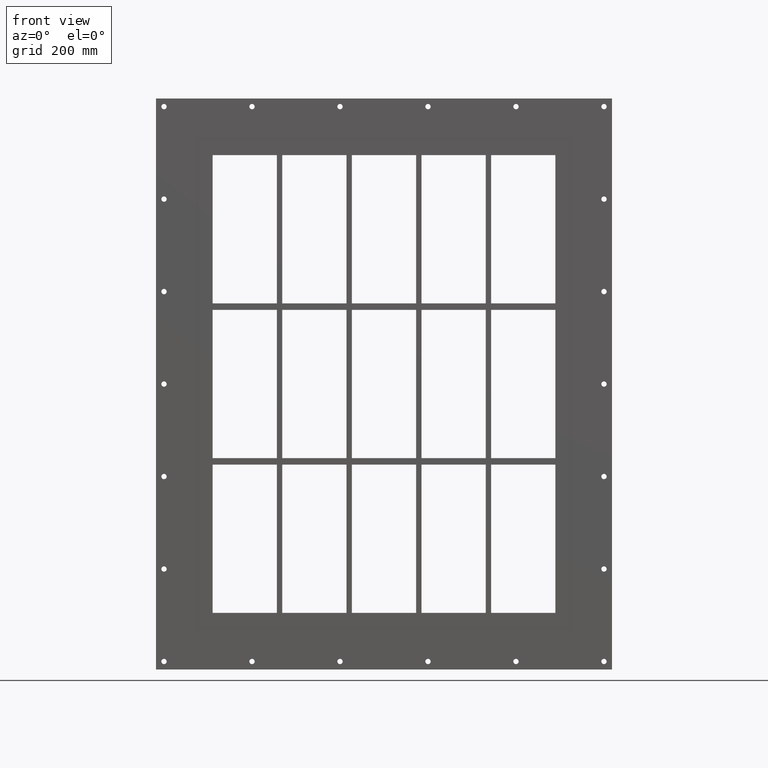
[diagram: clean part render]
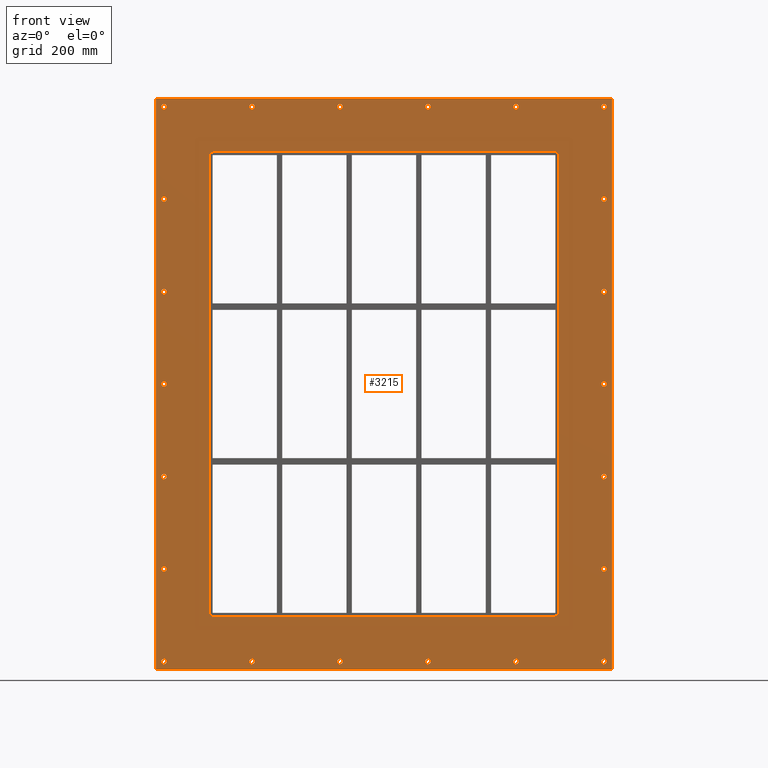
[diagram: same view with one face highlighted and labeled with its STEP entity id]
A machine part, front view. The second image highlights one B-rep face of the part: STEP entity #3215.
In plain terms, the highlighted planar face has unit normal (0, 1, 0).
Its self-contained STEP definition (entity closure, byte-faithful):
#84=CARTESIAN_POINT('',(-407.25,0.0,-519.99999999999977));
#85=VERTEX_POINT('',#84);
#86=CARTESIAN_POINT('',(-412.25,0.0,-519.99999999999977));
#87=DIRECTION('',(0.0,1.0,0.0));
#88=DIRECTION('',(1.0,0.0,0.0));
#89=AXIS2_PLACEMENT_3D('',#86,#87,#88);
#90=CIRCLE('',#89,5.0);
#91=EDGE_CURVE('',#85,#85,#90,.T.);
#112=CARTESIAN_POINT('',(417.25000000000017,0.0,-346.6999999999997));
#113=VERTEX_POINT('',#112);
#114=CARTESIAN_POINT('',(412.25000000000017,0.0,-346.6999999999997));
#115=DIRECTION('',(0.0,1.0,0.0));
#116=DIRECTION('',(1.0,0.0,0.0));
#117=AXIS2_PLACEMENT_3D('',#114,#115,#116);
#118=CIRCLE('',#117,5.0);
#119=EDGE_CURVE('',#113,#113,#118,.T.);
#140=CARTESIAN_POINT('',(-407.25,0.0,-346.6999999999997));
#141=VERTEX_POINT('',#140);
#142=CARTESIAN_POINT('',(-412.25,0.0,-346.6999999999997));
#143=DIRECTION('',(0.0,1.0,0.0));
#144=DIRECTION('',(1.0,0.0,0.0));
#145=AXIS2_PLACEMENT_3D('',#142,#143,#144);
#146=CIRCLE('',#145,5.0);
#147=EDGE_CURVE('',#141,#141,#146,.T.);
#168=CARTESIAN_POINT('',(417.25000000000017,0.0,-173.39999999999975));
#169=VERTEX_POINT('',#168);
#170=CARTESIAN_POINT('',(412.25000000000017,0.0,-173.39999999999975));
#171=DIRECTION('',(0.0,1.0,0.0));
#172=DIRECTION('',(1.0,0.0,0.0));
#173=AXIS2_PLACEMENT_3D('',#170,#171,#172);
#174=CIRCLE('',#173,5.0);
#175=EDGE_CURVE('',#169,#169,#174,.T.);
#196=CARTESIAN_POINT('',(-407.25,0.0,-173.39999999999975));
#197=VERTEX_POINT('',#196);
#198=CARTESIAN_POINT('',(-412.25,0.0,-173.39999999999975));
#199=DIRECTION('',(0.0,1.0,0.0));
#200=DIRECTION('',(1.0,0.0,0.0));
#201=AXIS2_PLACEMENT_3D('',#198,#199,#200);
#202=CIRCLE('',#201,5.0);
#203=EDGE_CURVE('',#197,#197,#202,.T.);
#224=CARTESIAN_POINT('',(417.25000000000017,0.0,-0.099999999999767));
#225=VERTEX_POINT('',#224);
#226=CARTESIAN_POINT('',(412.25000000000017,0.0,-0.099999999999767));
#227=DIRECTION('',(0.0,1.0,0.0));
#228=DIRECTION('',(1.0,0.0,0.0));
#229=AXIS2_PLACEMENT_3D('',#226,#227,#228);
#230=CIRCLE('',#229,5.0);
#231=EDGE_CURVE('',#225,#225,#230,.T.);
#252=CARTESIAN_POINT('',(-407.25,0.0,-0.099999999999767));
#253=VERTEX_POINT('',#252);
#254=CARTESIAN_POINT('',(-412.25,0.0,-0.099999999999767));
#255=DIRECTION('',(0.0,1.0,0.0));
#256=DIRECTION('',(1.0,0.0,0.0));
#257=AXIS2_PLACEMENT_3D('',#254,#255,#256);
#258=CIRCLE('',#257,5.0);
#259=EDGE_CURVE('',#253,#253,#258,.T.);
#280=CARTESIAN_POINT('',(417.25000000000017,0.0,173.20000000000022));
#281=VERTEX_POINT('',#280);
#282=CARTESIAN_POINT('',(412.25000000000017,0.0,173.20000000000022));
#283=DIRECTION('',(0.0,1.0,0.0));
#284=DIRECTION('',(1.0,0.0,0.0));
#285=AXIS2_PLACEMENT_3D('',#282,#283,#284);
#286=CIRCLE('',#285,5.0);
#287=EDGE_CURVE('',#281,#281,#286,.T.);
#308=CARTESIAN_POINT('',(-407.25,0.0,173.20000000000022));
#309=VERTEX_POINT('',#308);
#310=CARTESIAN_POINT('',(-412.25,0.0,173.20000000000022));
#311=DIRECTION('',(0.0,1.0,0.0));
#312=DIRECTION('',(1.0,0.0,0.0));
#313=AXIS2_PLACEMENT_3D('',#310,#311,#312);
#314=CIRCLE('',#313,5.0);
#315=EDGE_CURVE('',#309,#309,#314,.T.);
#336=CARTESIAN_POINT('',(417.25000000000017,0.0,346.50000000000023));
#337=VERTEX_POINT('',#336);
#338=CARTESIAN_POINT('',(412.25000000000017,0.0,346.50000000000023));
#339=DIRECTION('',(0.0,1.0,0.0));
#340=DIRECTION('',(1.0,0.0,0.0));
#341=AXIS2_PLACEMENT_3D('',#338,#339,#340);
#342=CIRCLE('',#341,5.0);
#343=EDGE_CURVE('',#337,#337,#342,.T.);
#364=CARTESIAN_POINT('',(-407.25,0.0,346.50000000000023));
#365=VERTEX_POINT('',#364);
#366=CARTESIAN_POINT('',(-412.25,0.0,346.50000000000023));
#367=DIRECTION('',(0.0,1.0,0.0));
#368=DIRECTION('',(1.0,0.0,0.0));
#369=AXIS2_PLACEMENT_3D('',#366,#367,#368);
#370=CIRCLE('',#369,5.0);
#371=EDGE_CURVE('',#365,#365,#370,.T.);
#392=CARTESIAN_POINT('',(-242.34999999999991,0.0,519.80000000000018));
#393=VERTEX_POINT('',#392);
#394=CARTESIAN_POINT('',(-247.34999999999991,0.0,519.80000000000018));
#395=DIRECTION('',(0.0,1.0,0.0));
#396=DIRECTION('',(1.0,0.0,0.0));
#397=AXIS2_PLACEMENT_3D('',#394,#395,#396);
#398=CIRCLE('',#397,5.0);
#399=EDGE_CURVE('',#393,#393,#398,.T.);
#420=CARTESIAN_POINT('',(-242.34999999999991,0.0,-520.0));
#421=VERTEX_POINT('',#420);
#422=CARTESIAN_POINT('',(-247.34999999999991,0.0,-520.0));
#423=DIRECTION('',(0.0,1.0,0.0));
#424=DIRECTION('',(1.0,0.0,0.0));
#425=AXIS2_PLACEMENT_3D('',#422,#423,#424);
#426=CIRCLE('',#425,5.0);
#427=EDGE_CURVE('',#421,#421,#426,.T.);
#448=CARTESIAN_POINT('',(-77.449999999999903,0.0,519.80000000000018));
#449=VERTEX_POINT('',#448);
#450=CARTESIAN_POINT('',(-82.449999999999903,0.0,519.80000000000018));
#451=DIRECTION('',(0.0,1.0,0.0));
#452=DIRECTION('',(1.0,0.0,0.0));
#453=AXIS2_PLACEMENT_3D('',#450,#451,#452);
#454=CIRCLE('',#453,5.0);
#455=EDGE_CURVE('',#449,#449,#454,.T.);
#476=CARTESIAN_POINT('',(-77.449999999999903,0.0,-520.0));
#477=VERTEX_POINT('',#476);
#478=CARTESIAN_POINT('',(-82.449999999999903,0.0,-520.0));
#479=DIRECTION('',(0.0,1.0,0.0));
#480=DIRECTION('',(1.0,0.0,0.0));
#481=AXIS2_PLACEMENT_3D('',#478,#479,#480);
#482=CIRCLE('',#481,5.0);
#483=EDGE_CURVE('',#477,#477,#482,.T.);
#504=CARTESIAN_POINT('',(87.450000000000117,0.0,519.80000000000018));
#505=VERTEX_POINT('',#504);
#506=CARTESIAN_POINT('',(82.450000000000117,0.0,519.80000000000018));
#507=DIRECTION('',(0.0,1.0,0.0));
#508=DIRECTION('',(1.0,0.0,0.0));
#509=AXIS2_PLACEMENT_3D('',#506,#507,#508);
#510=CIRCLE('',#509,5.0);
#511=EDGE_CURVE('',#505,#505,#510,.T.);
#532=CARTESIAN_POINT('',(87.450000000000117,0.0,-520.0));
#533=VERTEX_POINT('',#532);
#534=CARTESIAN_POINT('',(82.450000000000117,0.0,-520.0));
#535=DIRECTION('',(0.0,1.0,0.0));
#536=DIRECTION('',(1.0,0.0,0.0));
#537=AXIS2_PLACEMENT_3D('',#534,#535,#536);
#538=CIRCLE('',#537,5.0);
#539=EDGE_CURVE('',#533,#533,#538,.T.);
#560=CARTESIAN_POINT('',(252.35000000000014,0.0,519.80000000000018));
#561=VERTEX_POINT('',#560);
#562=CARTESIAN_POINT('',(247.35000000000014,0.0,519.80000000000018));
#563=DIRECTION('',(0.0,1.0,0.0));
#564=DIRECTION('',(1.0,0.0,0.0));
#565=AXIS2_PLACEMENT_3D('',#562,#563,#564);
#566=CIRCLE('',#565,5.0);
#567=EDGE_CURVE('',#561,#561,#566,.T.);
#588=CARTESIAN_POINT('',(252.35000000000014,0.0,-520.0));
#589=VERTEX_POINT('',#588);
#590=CARTESIAN_POINT('',(247.35000000000014,0.0,-520.0));
#591=DIRECTION('',(0.0,1.0,0.0));
#592=DIRECTION('',(1.0,0.0,0.0));
#593=AXIS2_PLACEMENT_3D('',#590,#591,#592);
#594=CIRCLE('',#593,5.0);
#595=EDGE_CURVE('',#589,#589,#594,.T.);
#616=CARTESIAN_POINT('',(417.25000000000017,0.0,-520.0));
#617=VERTEX_POINT('',#616);
#618=CARTESIAN_POINT('',(412.25000000000017,0.0,-520.0));
#619=DIRECTION('',(0.0,1.0,0.0));
#620=DIRECTION('',(1.0,0.0,0.0));
#621=AXIS2_PLACEMENT_3D('',#618,#619,#620);
#622=CIRCLE('',#621,5.0);
#623=EDGE_CURVE('',#617,#617,#622,.T.);
#644=CARTESIAN_POINT('',(-407.25,0.0,519.80000000000018));
#645=VERTEX_POINT('',#644);
#646=CARTESIAN_POINT('',(-412.25,0.0,519.80000000000018));
#647=DIRECTION('',(0.0,1.0,0.0));
#648=DIRECTION('',(1.0,0.0,0.0));
#649=AXIS2_PLACEMENT_3D('',#646,#647,#648);
#650=CIRCLE('',#649,5.0);
#651=EDGE_CURVE('',#645,#645,#650,.T.);
#672=CARTESIAN_POINT('',(417.25000000000017,0.0,519.80000000000018));
#673=VERTEX_POINT('',#672);
#674=CARTESIAN_POINT('',(412.25000000000017,0.0,519.80000000000018));
#675=DIRECTION('',(0.0,1.0,0.0));
#676=DIRECTION('',(1.0,0.0,0.0));
#677=AXIS2_PLACEMENT_3D('',#674,#675,#676);
#678=CIRCLE('',#677,5.0);
#679=EDGE_CURVE('',#673,#673,#678,.T.);
#3040=CARTESIAN_POINT('',(0.0,0.0,3.544406E-014));
#3041=DIRECTION('',(0.0,1.0,0.0));
#3042=DIRECTION('',(0.0,0.0,1.0));
#3043=AXIS2_PLACEMENT_3D('',#3040,#3041,#3042);
#3044=PLANE('',#3043);
#3045=CARTESIAN_POINT('',(-427.25,0.0,535.00000000000011));
#3046=VERTEX_POINT('',#3045);
#3047=CARTESIAN_POINT('',(427.25,0.0,535.00000000000011));
#3048=VERTEX_POINT('',#3047);
#3049=CARTESIAN_POINT('',(-427.25,0.0,535.00000000000011));
#3050=DIRECTION('',(1.0,0.0,0.0));
#3051=VECTOR('',#3050,854.5);
#3052=LINE('',#3049,#3051);
#3053=EDGE_CURVE('',#3046,#3048,#3052,.T.);
#3054=ORIENTED_EDGE('',*,*,#3053,.F.);
#3055=CARTESIAN_POINT('',(-427.25,0.0,-535.0));
#3056=VERTEX_POINT('',#3055);
#3057=CARTESIAN_POINT('',(-427.25,0.0,-535.0));
#3058=DIRECTION('',(0.0,0.0,1.0));
#3059=VECTOR('',#3058,1070.0);
#3060=LINE('',#3057,#3059);
#3061=EDGE_CURVE('',#3056,#3046,#3060,.T.);
#3062=ORIENTED_EDGE('',*,*,#3061,.F.);
#3063=CARTESIAN_POINT('',(427.25,0.0,-535.0));
#3064=VERTEX_POINT('',#3063);
#3065=CARTESIAN_POINT('',(427.25,0.0,-535.0));
#3066=DIRECTION('',(-1.0,0.0,0.0));
#3067=VECTOR('',#3066,854.5);
#3068=LINE('',#3065,#3067);
#3069=EDGE_CURVE('',#3064,#3056,#3068,.T.);
#3070=ORIENTED_EDGE('',*,*,#3069,.F.);
#3071=CARTESIAN_POINT('',(427.25,0.0,535.00000000000011));
#3072=DIRECTION('',(0.0,0.0,-1.0));
#3073=VECTOR('',#3072,1070.0);
#3074=LINE('',#3071,#3073);
#3075=EDGE_CURVE('',#3048,#3064,#3074,.T.);
#3076=ORIENTED_EDGE('',*,*,#3075,.F.);
#3077=EDGE_LOOP('',(#3054,#3062,#3070,#3076));
#3078=FACE_OUTER_BOUND('',#3077,.T.);
#3079=ORIENTED_EDGE('',*,*,#91,.T.);
#3080=EDGE_LOOP('',(#3079));
#3081=FACE_BOUND('',#3080,.T.);
#3082=ORIENTED_EDGE('',*,*,#119,.T.);
#3083=EDGE_LOOP('',(#3082));
#3084=FACE_BOUND('',#3083,.T.);
#3085=ORIENTED_EDGE('',*,*,#147,.T.);
#3086=EDGE_LOOP('',(#3085));
#3087=FACE_BOUND('',#3086,.T.);
#3088=ORIENTED_EDGE('',*,*,#175,.T.);
#3089=EDGE_LOOP('',(#3088));
#3090=FACE_BOUND('',#3089,.T.);
#3091=ORIENTED_EDGE('',*,*,#203,.T.);
#3092=EDGE_LOOP('',(#3091));
#3093=FACE_BOUND('',#3092,.T.);
#3094=ORIENTED_EDGE('',*,*,#231,.T.);
#3095=EDGE_LOOP('',(#3094));
#3096=FACE_BOUND('',#3095,.T.);
#3097=ORIENTED_EDGE('',*,*,#259,.T.);
#3098=EDGE_LOOP('',(#3097));
#3099=FACE_BOUND('',#3098,.T.);
#3100=ORIENTED_EDGE('',*,*,#287,.T.);
#3101=EDGE_LOOP('',(#3100));
#3102=FACE_BOUND('',#3101,.T.);
#3103=ORIENTED_EDGE('',*,*,#315,.T.);
#3104=EDGE_LOOP('',(#3103));
#3105=FACE_BOUND('',#3104,.T.);
#3106=ORIENTED_EDGE('',*,*,#343,.T.);
#3107=EDGE_LOOP('',(#3106));
#3108=FACE_BOUND('',#3107,.T.);
#3109=ORIENTED_EDGE('',*,*,#371,.T.);
#3110=EDGE_LOOP('',(#3109));
#3111=FACE_BOUND('',#3110,.T.);
#3112=ORIENTED_EDGE('',*,*,#399,.T.);
#3113=EDGE_LOOP('',(#3112));
#3114=FACE_BOUND('',#3113,.T.);
#3115=ORIENTED_EDGE('',*,*,#427,.T.);
#3116=EDGE_LOOP('',(#3115));
#3117=FACE_BOUND('',#3116,.T.);
#3118=ORIENTED_EDGE('',*,*,#455,.T.);
#3119=EDGE_LOOP('',(#3118));
#3120=FACE_BOUND('',#3119,.T.);
#3121=ORIENTED_EDGE('',*,*,#483,.T.);
#3122=EDGE_LOOP('',(#3121));
#3123=FACE_BOUND('',#3122,.T.);
#3124=ORIENTED_EDGE('',*,*,#511,.T.);
#3125=EDGE_LOOP('',(#3124));
#3126=FACE_BOUND('',#3125,.T.);
#3127=ORIENTED_EDGE('',*,*,#539,.T.);
#3128=EDGE_LOOP('',(#3127));
#3129=FACE_BOUND('',#3128,.T.);
#3130=ORIENTED_EDGE('',*,*,#567,.T.);
#3131=EDGE_LOOP('',(#3130));
#3132=FACE_BOUND('',#3131,.T.);
#3133=ORIENTED_EDGE('',*,*,#595,.T.);
#3134=EDGE_LOOP('',(#3133));
#3135=FACE_BOUND('',#3134,.T.);
#3136=ORIENTED_EDGE('',*,*,#623,.T.);
#3137=EDGE_LOOP('',(#3136));
#3138=FACE_BOUND('',#3137,.T.);
#3139=ORIENTED_EDGE('',*,*,#651,.T.);
#3140=EDGE_LOOP('',(#3139));
#3141=FACE_BOUND('',#3140,.T.);
#3142=ORIENTED_EDGE('',*,*,#679,.T.);
#3143=EDGE_LOOP('',(#3142));
#3144=FACE_BOUND('',#3143,.T.);
#3145=CARTESIAN_POINT('',(-327.25000000000011,0.0,-429.00000000000006));
#3146=VERTEX_POINT('',#3145);
#3147=CARTESIAN_POINT('',(-321.25,0.0,-435.0));
#3148=VERTEX_POINT('',#3147);
#3149=CARTESIAN_POINT('',(-321.25,0.0,-429.00000000000006));
#3150=DIRECTION('',(0.0,-1.0,0.0));
#3151=DIRECTION('',(-0.707106781186556,0.0,-0.707106781186539));
#3152=AXIS2_PLACEMENT_3D('',#3149,#3150,#3151);
#3153=CIRCLE('',#3152,6.000000000000001);
#3154=EDGE_CURVE('',#3146,#3148,#3153,.T.);
#3155=ORIENTED_EDGE('',*,*,#3154,.F.);
#3156=CARTESIAN_POINT('',(-327.25000000000011,0.0,429.00000000000006));
#3157=VERTEX_POINT('',#3156);
#3158=CARTESIAN_POINT('',(-327.25000000000011,0.0,429.0));
#3159=DIRECTION('',(0.0,0.0,-1.0));
#3160=VECTOR('',#3159,858.0);
#3161=LINE('',#3158,#3160);
#3162=EDGE_CURVE('',#3157,#3146,#3161,.T.);
#3163=ORIENTED_EDGE('',*,*,#3162,.F.);
#3164=CARTESIAN_POINT('',(-321.25000000000011,0.0,435.00000000000011));
#3165=VERTEX_POINT('',#3164);
#3166=CARTESIAN_POINT('',(-321.25000000000011,0.0,429.00000000000006));
#3167=DIRECTION('',(0.0,-1.0,0.0));
#3168=DIRECTION('',(-0.707106781186539,0.0,0.707106781186556));
#3169=AXIS2_PLACEMENT_3D('',#3166,#3167,#3168);
#3170=CIRCLE('',#3169,6.000000000000001);
#3171=EDGE_CURVE('',#3165,#3157,#3170,.T.);
#3172=ORIENTED_EDGE('',*,*,#3171,.F.);
#3173=CARTESIAN_POINT('',(321.24999999999989,0.0,435.00000000000011));
#3174=VERTEX_POINT('',#3173);
#3175=CARTESIAN_POINT('',(321.24999999999983,0.0,435.00000000000011));
#3176=DIRECTION('',(-1.0,0.0,0.0));
#3177=VECTOR('',#3176,642.5);
#3178=LINE('',#3175,#3177);
#3179=EDGE_CURVE('',#3174,#3165,#3178,.T.);
#3180=ORIENTED_EDGE('',*,*,#3179,.F.);
#3181=CARTESIAN_POINT('',(327.24999999999994,0.0,429.00000000000011));
#3182=VERTEX_POINT('',#3181);
#3183=CARTESIAN_POINT('',(321.24999999999989,0.0,429.00000000000011));
#3184=DIRECTION('',(0.0,-1.0,0.0));
#3185=DIRECTION('',(0.707106781186547,0.0,0.707106781186547));
#3186=AXIS2_PLACEMENT_3D('',#3183,#3184,#3185);
#3187=CIRCLE('',#3186,6.0);
#3188=EDGE_CURVE('',#3182,#3174,#3187,.T.);
#3189=ORIENTED_EDGE('',*,*,#3188,.F.);
#3190=CARTESIAN_POINT('',(327.24999999999994,0.0,-428.99999999999989));
#3191=VERTEX_POINT('',#3190);
#3192=CARTESIAN_POINT('',(327.24999999999994,0.0,-428.99999999999994));
#3193=DIRECTION('',(0.0,0.0,1.0));
#3194=VECTOR('',#3193,858.0);
#3195=LINE('',#3192,#3194);
#3196=EDGE_CURVE('',#3191,#3182,#3195,.T.);
#3197=ORIENTED_EDGE('',*,*,#3196,.F.);
#3198=CARTESIAN_POINT('',(321.25,0.0,-435.0));
#3199=VERTEX_POINT('',#3198);
#3200=CARTESIAN_POINT('',(321.25,0.0,-428.99999999999989));
#3201=DIRECTION('',(0.0,-1.0,0.0));
#3202=DIRECTION('',(0.707106781186539,0.0,-0.707106781186556));
#3203=AXIS2_PLACEMENT_3D('',#3200,#3201,#3202);
#3204=CIRCLE('',#3203,6.000000000000001);
#3205=EDGE_CURVE('',#3199,#3191,#3204,.T.);
#3206=ORIENTED_EDGE('',*,*,#3205,.F.);
#3207=CARTESIAN_POINT('',(-321.25,0.0,-435.0));
#3208=DIRECTION('',(1.0,0.0,0.0));
#3209=VECTOR('',#3208,642.5);
#3210=LINE('',#3207,#3209);
#3211=EDGE_CURVE('',#3148,#3199,#3210,.T.);
#3212=ORIENTED_EDGE('',*,*,#3211,.F.);
#3213=EDGE_LOOP('',(#3155,#3163,#3172,#3180,#3189,#3197,#3206,#3212));
#3214=FACE_BOUND('',#3213,.T.);
#3215=ADVANCED_FACE('',(#3078,#3081,#3084,#3087,#3090,#3093,#3096,#3099,#3102,#3105,#3108,#3111,#3114,#3117,#3120,#3123,#3126,#3129,#3132,#3135,#3138,#3141,#3144,#3214),#3044,.F.);